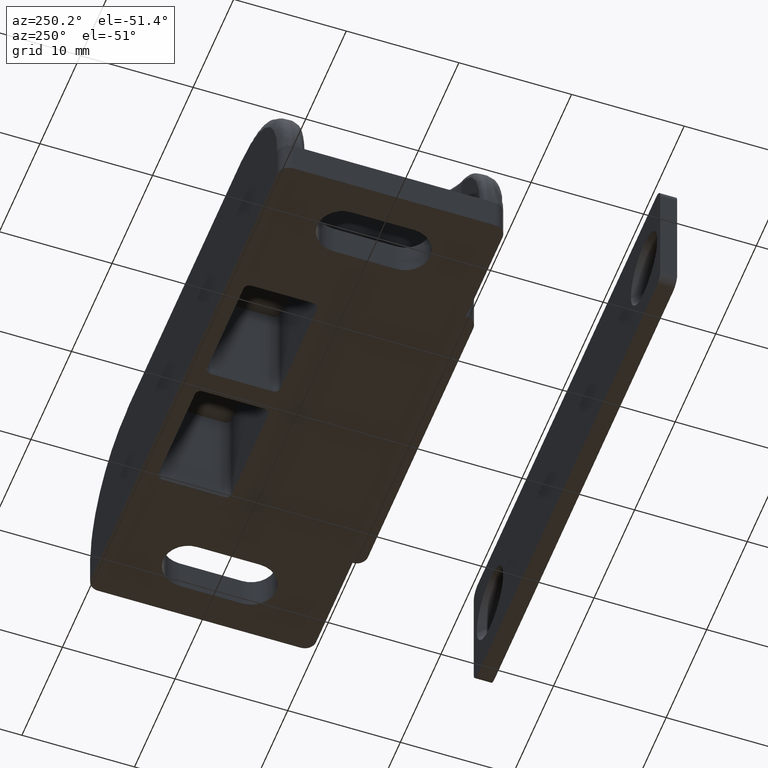
[diagram: clean part render]
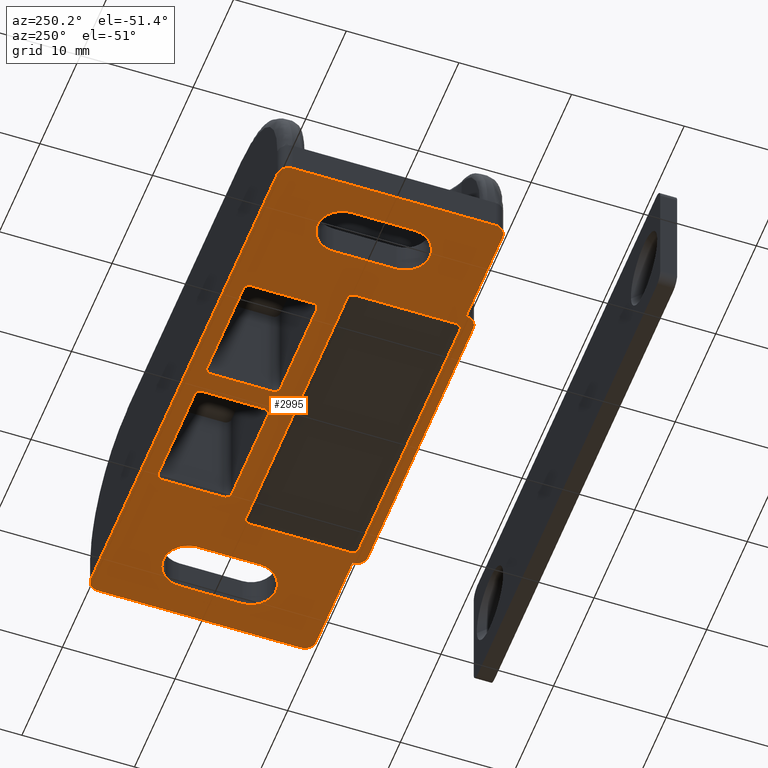
[diagram: same view with one face highlighted and labeled with its STEP entity id]
A machine part, auxiliary view. The second image highlights one B-rep face of the part: STEP entity #2995.
In plain terms, the highlighted face is a freeform B-spline surface patch.
Its self-contained STEP definition (entity closure, byte-faithful):
#847=CARTESIAN_POINT('',(-1.000000000035470,7.999999999994010,0.0));
#848=VERTEX_POINT('',#847);
#849=CARTESIAN_POINT('',(-1.000000000012264,2.499999999996120,0.0));
#850=VERTEX_POINT('',#849);
#851=CARTESIAN_POINT('',(-1.000000000035470,7.999999999994010,0.0));
#852=CARTESIAN_POINT('',(-1.000000000012264,2.499999999996120,0.0));
#853=QUASI_UNIFORM_CURVE('',1,(#851,#852),.UNSPECIFIED.,.F.,.U.);
#854=EDGE_CURVE('',#848,#850,#853,.T.);
#884=CARTESIAN_POINT('',(-1.500000000037615,8.499999999994000,0.0));
#885=VERTEX_POINT('',#884);
#886=CARTESIAN_POINT('',(-1.500000000037615,8.499999999994000,0.0));
#887=CARTESIAN_POINT('',(-1.418144576856627,8.500181285363576,0.0));
#888=CARTESIAN_POINT('',(-1.291515221262883,8.468147442227391,0.0));
#889=CARTESIAN_POINT('',(-1.154360710011185,8.368957784367474,0.0));
#890=CARTESIAN_POINT('',(-1.070689054153377,8.267012678080178,0.0));
#891=CARTESIAN_POINT('',(-1.013964101509254,8.143163684542296,0.0));
#892=CARTESIAN_POINT('',(-0.999981069626187,8.049088678338185,0.0));
#893=CARTESIAN_POINT('',(-1.000000000035470,7.999999999994010,0.0));
#894=B_SPLINE_CURVE_WITH_KNOTS('',3,(#886,#887,#888,#889,#890,#891,#892,#893),.UNSPECIFIED.,.F.,.U.,(4,1,1,1,1,4),(0.000000123591320,0.245445768556055,0.380455198754261,0.503149577302182,0.638154642856663,0.785417872192489),.UNSPECIFIED.);
#895=EDGE_CURVE('',#885,#848,#894,.T.);
#912=CARTESIAN_POINT('',(-10.500000000035460,8.499999999957970,0.0));
#913=VERTEX_POINT('',#912);
#914=CARTESIAN_POINT('',(-10.500000000035460,8.499999999957970,0.0));
#915=CARTESIAN_POINT('',(-1.500000000037615,8.499999999994000,0.0));
#916=QUASI_UNIFORM_CURVE('',1,(#914,#915),.UNSPECIFIED.,.F.,.U.);
#917=EDGE_CURVE('',#913,#885,#916,.T.);
#943=CARTESIAN_POINT('',(-11.000000000035460,7.999999999955860,0.0));
#944=VERTEX_POINT('',#943);
#945=CARTESIAN_POINT('',(-11.000000000035460,7.999999999955860,0.0));
#946=CARTESIAN_POINT('',(-11.000045861300540,8.061364911064171,0.0));
#947=CARTESIAN_POINT('',(-10.977134737730550,8.184052591473131,0.0));
#948=CARTESIAN_POINT('',(-10.881134330597250,8.339921330592127,0.0));
#949=CARTESIAN_POINT('',(-10.720736259109430,8.465052959929293,0.0));
#950=CARTESIAN_POINT('',(-10.581852234637839,8.500181869398686,0.0));
#951=CARTESIAN_POINT('',(-10.500000000035460,8.499999999957970,0.0));
#952=B_SPLINE_CURVE_WITH_KNOTS('',3,(#945,#946,#947,#948,#949,#950,#951),.UNSPECIFIED.,.F.,.U.,(4,1,1,1,4),(0.000000123591916,0.184081763443753,0.368176507065391,0.539972227227943,0.785417872192440),.UNSPECIFIED.);
#953=EDGE_CURVE('',#944,#913,#952,.T.);
#970=CARTESIAN_POINT('',(-11.000000000012280,2.499999999957965,0.0));
#971=VERTEX_POINT('',#970);
#972=CARTESIAN_POINT('',(-11.000000000012280,2.499999999957965,0.0));
#973=CARTESIAN_POINT('',(-11.000000000035460,7.999999999955860,0.0));
#974=QUASI_UNIFORM_CURVE('',1,(#972,#973),.UNSPECIFIED.,.F.,.U.);
#975=EDGE_CURVE('',#971,#944,#974,.T.);
#1001=CARTESIAN_POINT('',(-10.500000000010321,1.999999999958020,0.0));
#1002=VERTEX_POINT('',#1001);
#1003=CARTESIAN_POINT('',(-10.500000000010321,1.999999999958020,0.0));
#1004=CARTESIAN_POINT('',(-10.569553796959630,1.999925312765984,0.0));
#1005=CARTESIAN_POINT('',(-10.679931137793680,2.023411332056091,0.0));
#1006=CARTESIAN_POINT('',(-10.800105625651360,2.095501036179730,0.0));
#1007=CARTESIAN_POINT('',(-10.881316304215140,2.170944159377913,0.0));
#1008=CARTESIAN_POINT('',(-10.969206643664281,2.295595939035020,0.0));
#1009=CARTESIAN_POINT('',(-11.000157313639210,2.418150218490583,0.0));
#1010=CARTESIAN_POINT('',(-11.000000000012280,2.499999999957965,0.0));
#1011=B_SPLINE_CURVE_WITH_KNOTS('',3,(#1003,#1004,#1005,#1006,#1007,#1008,#1009,#1010),.UNSPECIFIED.,.F.,.U.,(4,1,1,1,1,4),(0.000000123591676,0.208627358040334,0.331349090115399,0.417241488718900,0.539972227227621,0.785417872192286),.UNSPECIFIED.);
#1012=EDGE_CURVE('',#1002,#971,#1011,.T.);
#1029=CARTESIAN_POINT('',(-1.500000000010330,1.999999999994005,0.0));
#1030=VERTEX_POINT('',#1029);
#1031=CARTESIAN_POINT('',(-1.500000000010330,1.999999999994005,0.0));
#1032=CARTESIAN_POINT('',(-10.500000000010321,1.999999999958020,0.0));
#1033=QUASI_UNIFORM_CURVE('',1,(#1031,#1032),.UNSPECIFIED.,.F.,.U.);
#1034=EDGE_CURVE('',#1030,#1002,#1033,.T.);
#1060=CARTESIAN_POINT('',(-1.000000000012264,2.499999999996120,0.0));
#1061=CARTESIAN_POINT('',(-1.000000000012265,1.999999999995940,0.0));
#1062=CARTESIAN_POINT('',(-1.500000000010330,1.999999999994005,0.0));
#1070=(BOUNDED_CURVE()B_SPLINE_CURVE(2,(#1060,#1061,#1062),.UNSPECIFIED.,.F.,.U.)CURVE()GEOMETRIC_REPRESENTATION_ITEM()QUASI_UNIFORM_CURVE()RATIONAL_B_SPLINE_CURVE((1.0,0.707106781187916,1.0))REPRESENTATION_ITEM(''));
#1071=EDGE_CURVE('',#850,#1030,#1070,.T.);
#1189=CARTESIAN_POINT('',(1.499999999987736,2.000000000005995,0.0));
#1190=VERTEX_POINT('',#1189);
#1191=CARTESIAN_POINT('',(0.999999999987736,2.500000000003895,0.0));
#1192=VERTEX_POINT('',#1191);
#1193=CARTESIAN_POINT('',(1.499999999987736,2.000000000005995,0.0));
#1194=CARTESIAN_POINT('',(0.999999999989836,2.000000000005996,0.0));
#1195=CARTESIAN_POINT('',(0.999999999987736,2.500000000003895,0.0));
#1203=(BOUNDED_CURVE()B_SPLINE_CURVE(2,(#1193,#1194,#1195),.UNSPECIFIED.,.F.,.U.)CURVE()GEOMETRIC_REPRESENTATION_ITEM()QUASI_UNIFORM_CURVE()RATIONAL_B_SPLINE_CURVE((1.0,0.707106781188033,1.0))REPRESENTATION_ITEM(''));
#1204=EDGE_CURVE('',#1190,#1192,#1203,.T.);
#1225=CARTESIAN_POINT('',(0.999999999964530,8.000000000006001,0.0));
#1226=VERTEX_POINT('',#1225);
#1227=CARTESIAN_POINT('',(0.999999999964530,8.000000000006001,0.0));
#1228=CARTESIAN_POINT('',(0.999999999987736,2.500000000003895,0.0));
#1229=QUASI_UNIFORM_CURVE('',1,(#1227,#1228),.UNSPECIFIED.,.F.,.U.);
#1230=EDGE_CURVE('',#1226,#1192,#1229,.T.);
#1256=CARTESIAN_POINT('',(1.499999999962498,8.500000000006001,0.0));
#1257=VERTEX_POINT('',#1256);
#1258=CARTESIAN_POINT('',(0.999999999964530,8.000000000006001,0.0));
#1259=CARTESIAN_POINT('',(0.999999999964530,8.500000000003968,0.0));
#1260=CARTESIAN_POINT('',(1.499999999962498,8.500000000006001,0.0));
#1268=(BOUNDED_CURVE()B_SPLINE_CURVE(2,(#1258,#1259,#1260),.UNSPECIFIED.,.F.,.U.)CURVE()GEOMETRIC_REPRESENTATION_ITEM()QUASI_UNIFORM_CURVE()RATIONAL_B_SPLINE_CURVE((1.0,0.707106781187984,1.0))REPRESENTATION_ITEM(''));
#1269=EDGE_CURVE('',#1226,#1257,#1268,.T.);
#1286=CARTESIAN_POINT('',(10.499999999964460,8.500000000041981,0.0));
#1287=VERTEX_POINT('',#1286);
#1288=CARTESIAN_POINT('',(10.499999999964460,8.500000000041981,0.0));
#1289=CARTESIAN_POINT('',(1.499999999962498,8.500000000006001,0.0));
#1290=QUASI_UNIFORM_CURVE('',1,(#1288,#1289),.UNSPECIFIED.,.F.,.U.);
#1291=EDGE_CURVE('',#1287,#1257,#1290,.T.);
#1317=CARTESIAN_POINT('',(10.999999999964460,8.000000000044080,0.0));
#1318=VERTEX_POINT('',#1317);
#1319=CARTESIAN_POINT('',(10.499999999964460,8.500000000041981,0.0));
#1320=CARTESIAN_POINT('',(10.999999999964460,8.500000000041981,0.0));
#1321=CARTESIAN_POINT('',(10.999999999964460,8.000000000041981,0.0));
#1329=(BOUNDED_CURVE()B_SPLINE_CURVE(2,(#1319,#1320,#1321),.UNSPECIFIED.,.F.,.U.)CURVE()GEOMETRIC_REPRESENTATION_ITEM()QUASI_UNIFORM_CURVE()RATIONAL_B_SPLINE_CURVE((1.0,0.707106781186548,1.0))REPRESENTATION_ITEM(''));
#1330=EDGE_CURVE('',#1287,#1318,#1329,.T.);
#1347=CARTESIAN_POINT('',(10.999999999987660,2.500000000041980,0.0));
#1348=VERTEX_POINT('',#1347);
#1349=CARTESIAN_POINT('',(10.999999999987660,2.500000000041980,0.0));
#1350=CARTESIAN_POINT('',(10.999999999964460,8.000000000044080,0.0));
#1351=QUASI_UNIFORM_CURVE('',1,(#1349,#1350),.UNSPECIFIED.,.F.,.U.);
#1352=EDGE_CURVE('',#1348,#1318,#1351,.T.);
#1378=CARTESIAN_POINT('',(10.499999999987660,2.000000000041980,0.0));
#1379=VERTEX_POINT('',#1378);
#1380=CARTESIAN_POINT('',(10.999999999987660,2.500000000041980,0.0));
#1381=CARTESIAN_POINT('',(10.999999999987660,2.000000000041979,0.0));
#1382=CARTESIAN_POINT('',(10.499999999987660,2.000000000041980,0.0));
#1390=(BOUNDED_CURVE()B_SPLINE_CURVE(2,(#1380,#1381,#1382),.UNSPECIFIED.,.F.,.U.)CURVE()GEOMETRIC_REPRESENTATION_ITEM()QUASI_UNIFORM_CURVE()RATIONAL_B_SPLINE_CURVE((1.0,0.707106781186548,1.0))REPRESENTATION_ITEM(''));
#1391=EDGE_CURVE('',#1348,#1379,#1390,.T.);
#1408=CARTESIAN_POINT('',(1.499999999987736,2.000000000005995,0.0));
#1409=CARTESIAN_POINT('',(10.499999999987660,2.000000000041980,0.0));
#1410=QUASI_UNIFORM_CURVE('',1,(#1408,#1409),.UNSPECIFIED.,.F.,.U.);
#1411=EDGE_CURVE('',#1190,#1379,#1410,.T.);
#1515=CARTESIAN_POINT('',(13.000000000000259,-0.499999999950096,0.0));
#1516=VERTEX_POINT('',#1515);
#1517=CARTESIAN_POINT('',(13.000000000038460,-9.499999999947901,0.0));
#1518=VERTEX_POINT('',#1517);
#1519=CARTESIAN_POINT('',(13.000000000000259,-0.499999999950096,0.0));
#1520=CARTESIAN_POINT('',(13.000000000038460,-9.499999999947901,0.0));
#1521=QUASI_UNIFORM_CURVE('',1,(#1519,#1520),.UNSPECIFIED.,.F.,.U.);
#1522=EDGE_CURVE('',#1516,#1518,#1521,.T.);
#1552=CARTESIAN_POINT('',(12.499999999998360,4.999379E-011,0.0));
#1553=VERTEX_POINT('',#1552);
#1554=CARTESIAN_POINT('',(12.499999999998360,4.999379E-011,0.0));
#1555=CARTESIAN_POINT('',(12.573656350086150,0.000102404549932,0.0));
#1556=CARTESIAN_POINT('',(12.683986070851940,-0.024854610088366,0.0));
#1557=CARTESIAN_POINT('',(12.827668926871119,-0.113384602888098,0.0));
#1558=CARTESIAN_POINT('',(12.922450740591550,-0.217955642119077,0.0));
#1559=CARTESIAN_POINT('',(12.986029418984810,-0.356838341703789,0.0));
#1560=CARTESIAN_POINT('',(13.000022405906551,-0.450910684634939,0.0));
#1561=CARTESIAN_POINT('',(13.000000000000259,-0.499999999950096,0.0));
#1562=B_SPLINE_CURVE_WITH_KNOTS('',3,(#1554,#1555,#1556,#1557,#1558,#1559,#1560,#1561),.UNSPECIFIED.,.F.,.U.,(4,1,1,1,1,4),(0.000000123593303,0.220901045042595,0.331349090116452,0.503149577302893,0.638154642856930,0.785417872192222),.UNSPECIFIED.);
#1563=EDGE_CURVE('',#1553,#1516,#1562,.T.);
#1580=CARTESIAN_POINT('',(-12.499999999999661,-5.005063E-011,0.0));
#1581=VERTEX_POINT('',#1580);
#1582=CARTESIAN_POINT('',(-12.499999999999661,-5.005063E-011,0.0));
#1583=CARTESIAN_POINT('',(12.499999999998360,4.999379E-011,0.0));
#1584=QUASI_UNIFORM_CURVE('',1,(#1582,#1583),.UNSPECIFIED.,.F.,.U.);
#1585=EDGE_CURVE('',#1581,#1553,#1584,.T.);
#1611=CARTESIAN_POINT('',(-12.999999999999639,-0.500000000052097,0.0));
#1612=VERTEX_POINT('',#1611);
#1613=CARTESIAN_POINT('',(-12.999999999999639,-0.500000000052097,0.0));
#1614=CARTESIAN_POINT('',(-13.000022797744380,-0.450910979784352,0.0));
#1615=CARTESIAN_POINT('',(-12.986027174540590,-0.356839263101449,0.0));
#1616=CARTESIAN_POINT('',(-12.922453593916771,-0.217952776566497,0.0));
#1617=CARTESIAN_POINT('',(-12.833243712626690,-0.119538024007047,0.0));
#1618=CARTESIAN_POINT('',(-12.692124491026849,-0.027724687470865,0.0));
#1619=CARTESIAN_POINT('',(-12.581861585179750,0.000182994520490,0.0));
#1620=CARTESIAN_POINT('',(-12.499999999999661,-5.005063E-011,0.0));
#1621=B_SPLINE_CURVE_WITH_KNOTS('',3,(#1613,#1614,#1615,#1616,#1617,#1618,#1619,#1620),.UNSPECIFIED.,.F.,.U.,(4,1,1,1,1,4),(0.000000123592057,0.147263352927700,0.282268418482022,0.454068905668779,0.539972227227888,0.785417872192386),.UNSPECIFIED.);
#1622=EDGE_CURVE('',#1612,#1581,#1621,.T.);
#1639=CARTESIAN_POINT('',(-12.999999999961560,-9.500000000049989,0.0));
#1640=VERTEX_POINT('',#1639);
#1641=CARTESIAN_POINT('',(-12.999999999961560,-9.500000000049989,0.0));
#1642=CARTESIAN_POINT('',(-12.999999999999639,-0.500000000052097,0.0));
#1643=QUASI_UNIFORM_CURVE('',1,(#1641,#1642),.UNSPECIFIED.,.F.,.U.);
#1644=EDGE_CURVE('',#1640,#1612,#1643,.T.);
#1670=CARTESIAN_POINT('',(-12.499999999961560,-10.000000000049940,0.0));
#1671=VERTEX_POINT('',#1670);
#1672=CARTESIAN_POINT('',(-12.499999999961560,-10.000000000049940,0.0));
#1673=CARTESIAN_POINT('',(-12.999999999961560,-10.000000000049990,0.0));
#1674=CARTESIAN_POINT('',(-12.999999999961560,-9.500000000049989,0.0));
#1682=(BOUNDED_CURVE()B_SPLINE_CURVE(2,(#1672,#1673,#1674),.UNSPECIFIED.,.F.,.U.)CURVE()GEOMETRIC_REPRESENTATION_ITEM()QUASI_UNIFORM_CURVE()RATIONAL_B_SPLINE_CURVE((1.0,0.707106781186548,1.0))REPRESENTATION_ITEM(''));
#1683=EDGE_CURVE('',#1671,#1640,#1682,.T.);
#1700=CARTESIAN_POINT('',(12.500000000038460,-9.999999999950010,0.0));
#1701=VERTEX_POINT('',#1700);
#1702=CARTESIAN_POINT('',(12.500000000038460,-9.999999999950010,0.0));
#1703=CARTESIAN_POINT('',(-12.499999999961560,-10.000000000049940,0.0));
#1704=QUASI_UNIFORM_CURVE('',1,(#1702,#1703),.UNSPECIFIED.,.F.,.U.);
#1705=EDGE_CURVE('',#1701,#1671,#1704,.T.);
#1731=CARTESIAN_POINT('',(13.000000000038460,-9.499999999947901,0.0));
#1732=CARTESIAN_POINT('',(13.000000000038462,-9.999999999950012,0.0));
#1733=CARTESIAN_POINT('',(12.500000000038460,-9.999999999950012,0.0));
#1741=(BOUNDED_CURVE()B_SPLINE_CURVE(2,(#1731,#1732,#1733),.UNSPECIFIED.,.F.,.U.)CURVE()GEOMETRIC_REPRESENTATION_ITEM()QUASI_UNIFORM_CURVE()RATIONAL_B_SPLINE_CURVE((1.0,0.707106781186548,1.0))REPRESENTATION_ITEM(''));
#1742=EDGE_CURVE('',#1518,#1701,#1741,.T.);
#1768=CARTESIAN_POINT('',(-21.200000000003548,-2.799999999999385,8.182344E-011));
#1769=VERTEX_POINT('',#1768);
#1770=CARTESIAN_POINT('',(-16.800000000003500,-2.799999999999785,0.0));
#1771=VERTEX_POINT('',#1770);
#1772=CARTESIAN_POINT('',(-21.200000000003548,-2.799999999999385,8.182344E-011));
#1773=CARTESIAN_POINT('',(-21.200014035222360,-2.943985025834917,8.182344E-011));
#1774=CARTESIAN_POINT('',(-21.169856913327770,-3.249948613311875,8.182344E-011));
#1775=CARTESIAN_POINT('',(-21.011355765905432,-3.750632422289626,8.182344E-011));
#1776=CARTESIAN_POINT('',(-20.714440519961428,-4.219443085349657,8.182344E-011));
#1777=CARTESIAN_POINT('',(-20.273799002967149,-4.623782332748077,8.182344E-011));
#1778=CARTESIAN_POINT('',(-19.791265393646679,-4.877908535921897,8.182344E-011));
#1779=CARTESIAN_POINT('',(-19.333163874934801,-4.986621950209796,8.182344E-011));
#1780=CARTESIAN_POINT('',(-18.909880711432780,-5.010025163830843,8.182344E-011));
#1781=CARTESIAN_POINT('',(-18.505514287329280,-4.960163217194029,8.182063E-011));
#1782=CARTESIAN_POINT('',(-18.018064562132121,-4.792523098164563,8.184104E-011));
#1783=CARTESIAN_POINT('',(-17.589733580962118,-4.517580433595072,8.173891E-011));
#1784=CARTESIAN_POINT('',(-17.217791473350459,-4.122053553121088,8.215452E-011));
#1785=CARTESIAN_POINT('',(-16.984943574664982,-3.722519435527489,8.176315E-011));
#1786=CARTESIAN_POINT('',(-16.834806800296182,-3.267937692633274,7.770744E-011));
#1787=CARTESIAN_POINT('',(-16.799962564355400,-2.970984335306891,1.134238E-010));
#1788=CARTESIAN_POINT('',(-16.800000000003500,-2.799999999999785,0.0));
#1789=B_SPLINE_CURVE_WITH_KNOTS('',3,(#1772,#1773,#1774,#1775,#1776,#1777,#1778,#1779,#1780,#1781,#1782,#1783,#1784,#1785,#1786,#1787,#1788),.UNSPECIFIED.,.F.,.U.,(4,1,1,1,1,1,1,1,1,1,1,1,1,1,4),(0.000000170090376,0.431957898050461,0.917921801200133,1.565896788740989,2.078866167304941,2.699842888576141,3.185806585138208,3.482744671082705,3.968734878159440,4.400699643406163,5.021667728153497,5.480642273643279,6.020625235722035,6.398599646332801,6.911547204700198),.UNSPECIFIED.);
#1790=EDGE_CURVE('',#1769,#1771,#1789,.T.);
#1835=CARTESIAN_POINT('',(-21.200000000002301,2.800000000000095,8.182344E-011));
#1836=VERTEX_POINT('',#1835);
#1837=CARTESIAN_POINT('',(-21.200000000002301,2.800000000000095,8.182344E-011));
#1838=CARTESIAN_POINT('',(-21.200000000003548,-2.799999999999385,8.182344E-011));
#1839=QUASI_UNIFORM_CURVE('',1,(#1837,#1838),.UNSPECIFIED.,.F.,.U.);
#1840=EDGE_CURVE('',#1836,#1769,#1839,.T.);
#1876=CARTESIAN_POINT('',(-16.800000000002250,2.800000000000095,8.182344E-011));
#1877=VERTEX_POINT('',#1876);
#1878=CARTESIAN_POINT('',(-16.800000000002250,2.800000000000095,8.182344E-011));
#1879=CARTESIAN_POINT('',(-16.799977033698859,2.961979648967807,8.182344E-011));
#1880=CARTESIAN_POINT('',(-16.836922810493078,3.294946562102949,8.182344E-011));
#1881=CARTESIAN_POINT('',(-16.986914171685850,3.722422900461682,8.182344E-011));
#1882=CARTESIAN_POINT('',(-17.193670295881549,4.072152599387451,8.182344E-011));
#1883=CARTESIAN_POINT('',(-17.459066329040741,4.391592210459012,8.182344E-011));
#1884=CARTESIAN_POINT('',(-17.834255502906341,4.691900503816167,8.182344E-011));
#1885=CARTESIAN_POINT('',(-18.271199024894269,4.891996702050800,8.182344E-011));
#1886=CARTESIAN_POINT('',(-18.728610092606981,4.997647206918710,8.182344E-011));
#1887=CARTESIAN_POINT('',(-19.190472550971158,5.011854016328301,8.182344E-011));
#1888=CARTESIAN_POINT('',(-19.705250166062271,4.906170605683383,8.182344E-011));
#1889=CARTESIAN_POINT('',(-20.123283569075639,4.708448899280573,8.182344E-011));
#1890=CARTESIAN_POINT('',(-20.449430878994949,4.466513398309115,8.182344E-011));
#1891=CARTESIAN_POINT('',(-20.684173357804799,4.228868880515470,8.182344E-011));
#1892=CARTESIAN_POINT('',(-20.922088043780501,3.899778934422209,8.182344E-011));
#1893=CARTESIAN_POINT('',(-21.137338097128840,3.429903730383904,8.182344E-011));
#1894=CARTESIAN_POINT('',(-21.200096558436378,3.024985794838863,8.182344E-011));
#1895=CARTESIAN_POINT('',(-21.200000000002301,2.800000000000095,8.182344E-011));
#1896=B_SPLINE_CURVE_WITH_KNOTS('',3,(#1878,#1879,#1880,#1881,#1882,#1883,#1884,#1885,#1886,#1887,#1888,#1889,#1890,#1891,#1892,#1893,#1894,#1895),.UNSPECIFIED.,.F.,.U.,(4,1,1,1,1,1,1,1,1,1,1,1,1,1,1,4),(0.000000170090687,0.485939635807597,0.998922497431208,1.349905382364107,1.700889989325206,2.240863361446135,2.780839676992331,3.131824927391030,3.644749587917279,4.157703510800427,4.697691373980877,5.021667728155252,5.372653603359586,5.696628429901692,6.236607287647940,6.911547204699534),.UNSPECIFIED.);
#1897=EDGE_CURVE('',#1877,#1836,#1896,.T.);
#1936=CARTESIAN_POINT('',(-16.800000000003500,-2.799999999999785,0.0));
#1937=CARTESIAN_POINT('',(-16.800000000002250,2.800000000000095,8.182344E-011));
#1938=QUASI_UNIFORM_CURVE('',1,(#1936,#1937),.UNSPECIFIED.,.F.,.U.);
#1939=EDGE_CURVE('',#1771,#1877,#1938,.T.);
#2499=CARTESIAN_POINT('',(-13.000000000000661,-10.999999999999799,0.0));
#2500=VERTEX_POINT('',#2499);
#2501=CARTESIAN_POINT('',(-14.000000000000661,-9.999999999999789,0.0));
#2502=VERTEX_POINT('',#2501);
#2503=CARTESIAN_POINT('',(-13.000000000000661,-10.999999999999790,0.0));
#2504=CARTESIAN_POINT('',(-14.000000000000657,-10.999999999999787,0.0));
#2505=CARTESIAN_POINT('',(-14.000000000000661,-9.999999999999789,0.0));
#2513=(BOUNDED_CURVE()B_SPLINE_CURVE(2,(#2503,#2504,#2505),.UNSPECIFIED.,.F.,.U.)CURVE()GEOMETRIC_REPRESENTATION_ITEM()QUASI_UNIFORM_CURVE()RATIONAL_B_SPLINE_CURVE((1.0,0.707106781186548,1.0))REPRESENTATION_ITEM(''));
#2514=EDGE_CURVE('',#2500,#2502,#2513,.T.);
#2560=CARTESIAN_POINT('',(13.999999999996760,-9.999999999999789,0.0));
#2561=VERTEX_POINT('',#2560);
#2562=CARTESIAN_POINT('',(12.999999999996760,-10.999999999999799,0.0));
#2563=VERTEX_POINT('',#2562);
#2564=CARTESIAN_POINT('',(13.999999999996760,-9.999999999999789,0.0));
#2565=CARTESIAN_POINT('',(13.999999999996763,-10.999999999999787,0.0));
#2566=CARTESIAN_POINT('',(12.999999999996760,-10.999999999999790,0.0));
#2574=(BOUNDED_CURVE()B_SPLINE_CURVE(2,(#2564,#2565,#2566),.UNSPECIFIED.,.F.,.U.)CURVE()GEOMETRIC_REPRESENTATION_ITEM()QUASI_UNIFORM_CURVE()RATIONAL_B_SPLINE_CURVE((1.0,0.707106781186548,1.0))REPRESENTATION_ITEM(''));
#2575=EDGE_CURVE('',#2561,#2563,#2574,.T.);
#2618=CARTESIAN_POINT('',(12.999999999996760,-10.999999999999799,0.0));
#2619=CARTESIAN_POINT('',(-13.000000000000661,-10.999999999999799,0.0));
#2620=QUASI_UNIFORM_CURVE('',1,(#2618,#2619),.UNSPECIFIED.,.F.,.U.);
#2621=EDGE_CURVE('',#2563,#2500,#2620,.T.);
#2649=CARTESIAN_POINT('',(22.999999999996749,10.0,0.0));
#2650=VERTEX_POINT('',#2649);
#2656=CARTESIAN_POINT('',(-23.000000000003151,10.0,0.0));
#2657=VERTEX_POINT('',#2656);
#2658=CARTESIAN_POINT('',(22.999999999996749,10.0,0.0));
#2659=CARTESIAN_POINT('',(-23.000000000003151,10.0,0.0));
#2660=QUASI_UNIFORM_CURVE('',1,(#2658,#2659),.UNSPECIFIED.,.F.,.U.);
#2661=EDGE_CURVE('',#2650,#2657,#2660,.T.);
#2713=CARTESIAN_POINT('',(-23.000000000003151,-9.999999999999799,0.0));
#2714=VERTEX_POINT('',#2713);
#2720=CARTESIAN_POINT('',(-14.000000000000661,-9.999999999999789,0.0));
#2721=CARTESIAN_POINT('',(-23.000000000003151,-9.999999999999799,0.0));
#2722=QUASI_UNIFORM_CURVE('',1,(#2720,#2721),.UNSPECIFIED.,.F.,.U.);
#2723=EDGE_CURVE('',#2502,#2714,#2722,.T.);
#2734=CARTESIAN_POINT('',(22.999999999996749,-9.999999999999799,0.0));
#2735=VERTEX_POINT('',#2734);
#2736=CARTESIAN_POINT('',(22.999999999996749,-9.999999999999799,0.0));
#2737=CARTESIAN_POINT('',(13.999999999996760,-9.999999999999789,0.0));
#2738=QUASI_UNIFORM_CURVE('',1,(#2736,#2737),.UNSPECIFIED.,.F.,.U.);
#2739=EDGE_CURVE('',#2735,#2561,#2738,.T.);
#2814=CARTESIAN_POINT('',(-26.397599906958231,-12.048949959297721,0.0));
#2815=CARTESIAN_POINT('',(26.397601194412111,-12.048949959297721,0.0));
#2816=CARTESIAN_POINT('',(-26.397599906958231,11.048950522561810,0.0));
#2817=CARTESIAN_POINT('',(26.397601194412111,11.048950522561810,0.0));
#2818=B_SPLINE_SURFACE_WITH_KNOTS('',1,1,((#2814,#2816),(#2815,#2817)),.UNSPECIFIED.,.F.,.F.,.U.,(2,2),(2,2),(0.0,52.795201101370338),(0.0,23.097900481859529),.UNSPECIFIED.);
#2819=ORIENTED_EDGE('',*,*,#2723,.T.);
#2820=CARTESIAN_POINT('',(-23.999999999992600,-8.999999999999789,0.0));
#2821=VERTEX_POINT('',#2820);
#2822=CARTESIAN_POINT('',(-23.000000000003151,-9.999999999999790,0.0));
#2823=CARTESIAN_POINT('',(-24.000000000003151,-9.999999999999790,0.0));
#2824=CARTESIAN_POINT('',(-24.000000000003151,-8.999999999999789,0.0));
#2832=(BOUNDED_CURVE()B_SPLINE_CURVE(2,(#2822,#2823,#2824),.UNSPECIFIED.,.F.,.U.)CURVE()GEOMETRIC_REPRESENTATION_ITEM()QUASI_UNIFORM_CURVE()RATIONAL_B_SPLINE_CURVE((1.0,0.707106781186548,1.0))REPRESENTATION_ITEM(''));
#2833=EDGE_CURVE('',#2714,#2821,#2832,.T.);
#2834=ORIENTED_EDGE('',*,*,#2833,.T.);
#2835=CARTESIAN_POINT('',(-23.999999999992600,9.0,0.0));
#2836=VERTEX_POINT('',#2835);
#2837=CARTESIAN_POINT('',(-23.999999999992600,9.0,0.0));
#2838=CARTESIAN_POINT('',(-23.999999999992600,-8.999999999999789,0.0));
#2839=QUASI_UNIFORM_CURVE('',1,(#2837,#2838),.UNSPECIFIED.,.F.,.U.);
#2840=EDGE_CURVE('',#2836,#2821,#2839,.T.);
#2841=ORIENTED_EDGE('',*,*,#2840,.F.);
#2842=CARTESIAN_POINT('',(-23.999999999992600,9.0,0.0));
#2843=CARTESIAN_POINT('',(-24.000000000003151,9.999999999999998,0.0));
#2844=CARTESIAN_POINT('',(-23.000000000003151,9.999999999999998,0.0));
#2852=(BOUNDED_CURVE()B_SPLINE_CURVE(2,(#2842,#2843,#2844),.UNSPECIFIED.,.F.,.U.)CURVE()GEOMETRIC_REPRESENTATION_ITEM()QUASI_UNIFORM_CURVE()RATIONAL_B_SPLINE_CURVE((1.0,0.707106781186548,1.0))REPRESENTATION_ITEM(''));
#2853=EDGE_CURVE('',#2836,#2657,#2852,.T.);
#2854=ORIENTED_EDGE('',*,*,#2853,.T.);
#2855=ORIENTED_EDGE('',*,*,#2661,.F.);
#2856=CARTESIAN_POINT('',(23.999999999986152,9.0,0.0));
#2857=VERTEX_POINT('',#2856);
#2858=CARTESIAN_POINT('',(22.999999999996749,9.999999999999998,0.0));
#2859=CARTESIAN_POINT('',(23.999999999996746,9.999999999999998,0.0));
#2860=CARTESIAN_POINT('',(23.999999999996749,9.0,0.0));
#2868=(BOUNDED_CURVE()B_SPLINE_CURVE(2,(#2858,#2859,#2860),.UNSPECIFIED.,.F.,.U.)CURVE()GEOMETRIC_REPRESENTATION_ITEM()QUASI_UNIFORM_CURVE()RATIONAL_B_SPLINE_CURVE((1.0,0.707106781186548,1.0))REPRESENTATION_ITEM(''));
#2869=EDGE_CURVE('',#2650,#2857,#2868,.T.);
#2870=ORIENTED_EDGE('',*,*,#2869,.T.);
#2871=CARTESIAN_POINT('',(23.999999999986152,-8.999999999999789,0.0));
#2872=VERTEX_POINT('',#2871);
#2873=CARTESIAN_POINT('',(23.999999999986152,9.0,0.0));
#2874=CARTESIAN_POINT('',(23.999999999986152,-8.999999999999789,0.0));
#2875=QUASI_UNIFORM_CURVE('',1,(#2873,#2874),.UNSPECIFIED.,.F.,.U.);
#2876=EDGE_CURVE('',#2857,#2872,#2875,.T.);
#2877=ORIENTED_EDGE('',*,*,#2876,.T.);
#2878=CARTESIAN_POINT('',(23.999999999986152,-8.999999999999789,0.0));
#2879=CARTESIAN_POINT('',(23.999999999996746,-9.999999999999790,0.0));
#2880=CARTESIAN_POINT('',(22.999999999996749,-9.999999999999790,0.0));
#2888=(BOUNDED_CURVE()B_SPLINE_CURVE(2,(#2878,#2879,#2880),.UNSPECIFIED.,.F.,.U.)CURVE()GEOMETRIC_REPRESENTATION_ITEM()QUASI_UNIFORM_CURVE()RATIONAL_B_SPLINE_CURVE((1.0,0.707106781186548,1.0))REPRESENTATION_ITEM(''));
#2889=EDGE_CURVE('',#2872,#2735,#2888,.T.);
#2890=ORIENTED_EDGE('',*,*,#2889,.T.);
#2891=ORIENTED_EDGE('',*,*,#2739,.T.);
#2892=ORIENTED_EDGE('',*,*,#2575,.T.);
#2893=ORIENTED_EDGE('',*,*,#2621,.T.);
#2894=ORIENTED_EDGE('',*,*,#2514,.T.);
#2895=EDGE_LOOP('',(#2819,#2834,#2841,#2854,#2855,#2870,#2877,#2890,#2891,#2892,#2893,#2894));
#2896=FACE_OUTER_BOUND('',#2895,.T.);
#2897=ORIENTED_EDGE('',*,*,#1939,.T.);
#2898=ORIENTED_EDGE('',*,*,#1897,.T.);
#2899=ORIENTED_EDGE('',*,*,#1840,.T.);
#2900=ORIENTED_EDGE('',*,*,#1790,.T.);
#2901=EDGE_LOOP('',(#2897,#2898,#2899,#2900));
#2902=FACE_BOUND('',#2901,.T.);
#2903=ORIENTED_EDGE('',*,*,#1034,.F.);
#2904=ORIENTED_EDGE('',*,*,#1071,.F.);
#2905=ORIENTED_EDGE('',*,*,#854,.F.);
#2906=ORIENTED_EDGE('',*,*,#895,.F.);
#2907=ORIENTED_EDGE('',*,*,#917,.F.);
#2908=ORIENTED_EDGE('',*,*,#953,.F.);
#2909=ORIENTED_EDGE('',*,*,#975,.F.);
#2910=ORIENTED_EDGE('',*,*,#1012,.F.);
#2911=EDGE_LOOP('',(#2903,#2904,#2905,#2906,#2907,#2908,#2909,#2910));
#2912=FACE_BOUND('',#2911,.T.);
#2913=CARTESIAN_POINT('',(21.199999999999399,2.800000000000095,8.182344E-011));
#2914=VERTEX_POINT('',#2913);
#2915=CARTESIAN_POINT('',(16.799999999999351,2.800000000000095,8.182344E-011));
#2916=VERTEX_POINT('',#2915);
#2917=CARTESIAN_POINT('',(21.199999999999399,2.800000000000095,8.182344E-011));
#2918=CARTESIAN_POINT('',(21.200214334042219,3.061010697765132,8.182344E-011));
#2919=CARTESIAN_POINT('',(21.127054741124930,3.465819995336332,8.182344E-011));
#2920=CARTESIAN_POINT('',(20.896946182652279,3.937144079676368,8.182344E-011));
#2921=CARTESIAN_POINT('',(20.635626992581422,4.294104252607568,8.182344E-011));
#2922=CARTESIAN_POINT('',(20.346744921817869,4.555938679194599,8.182344E-011));
#2923=CARTESIAN_POINT('',(20.001286885039161,4.768756950397143,8.182344E-011));
#2924=CARTESIAN_POINT('',(19.618205092286932,4.930252313965520,8.182344E-011));
#2925=CARTESIAN_POINT('',(19.144866688380660,5.015386440296510,8.182344E-011));
#2926=CARTESIAN_POINT('',(18.684113250315129,4.989860744431568,8.182344E-011));
#2927=CARTESIAN_POINT('',(18.289432820328070,4.893570462080201,8.182344E-011));
#2928=CARTESIAN_POINT('',(17.949769825909460,4.745493431606040,8.182344E-011));
#2929=CARTESIAN_POINT('',(17.580409880203739,4.502010233944010,8.182344E-011));
#2930=CARTESIAN_POINT('',(17.261559870211890,4.179231157752121,8.182344E-011));
#2931=CARTESIAN_POINT('',(17.029158448155730,3.801958240251123,8.182344E-011));
#2932=CARTESIAN_POINT('',(16.851532056849639,3.357894210667918,8.182344E-011));
#2933=CARTESIAN_POINT('',(16.799895280132830,3.024994654094462,8.182344E-011));
#2934=CARTESIAN_POINT('',(16.799999999999351,2.800000000000095,8.182344E-011));
#2935=B_SPLINE_CURVE_WITH_KNOTS('',3,(#2917,#2918,#2919,#2920,#2921,#2922,#2923,#2924,#2925,#2926,#2927,#2928,#2929,#2930,#2931,#2932,#2933,#2934),.UNSPECIFIED.,.F.,.U.,(4,1,1,1,1,1,1,1,1,1,1,1,1,1,1,4),(0.000000170091456,0.782931744164558,1.214913599890876,1.565896788742591,2.105872431816775,2.375848701780921,2.780839676991807,3.347793469673723,3.806747419317365,4.157703510797957,4.562697442459531,4.913677451441030,5.480642273643086,5.912617379912310,6.236607287647545,6.911547204699877),.UNSPECIFIED.);
#2936=EDGE_CURVE('',#2914,#2916,#2935,.T.);
#2937=ORIENTED_EDGE('',*,*,#2936,.T.);
#2938=CARTESIAN_POINT('',(16.800000000000651,-2.799999999999785,8.182344E-011));
#2939=VERTEX_POINT('',#2938);
#2940=CARTESIAN_POINT('',(16.800000000000651,-2.799999999999785,8.182344E-011));
#2941=CARTESIAN_POINT('',(16.799999999999351,2.800000000000095,8.182344E-011));
#2942=QUASI_UNIFORM_CURVE('',1,(#2940,#2941),.UNSPECIFIED.,.F.,.U.);
#2943=EDGE_CURVE('',#2939,#2916,#2942,.T.);
#2944=ORIENTED_EDGE('',*,*,#2943,.F.);
#2945=CARTESIAN_POINT('',(21.200000000000649,-2.799999999999785,0.0));
#2946=VERTEX_POINT('',#2945);
#2947=CARTESIAN_POINT('',(16.800000000000651,-2.799999999999785,8.182344E-011));
#2948=CARTESIAN_POINT('',(16.799983549574701,-2.943985640677806,8.182344E-011));
#2949=CARTESIAN_POINT('',(16.830139565546830,-3.249952334509286,8.182344E-011));
#2950=CARTESIAN_POINT('',(16.980477576710818,-3.724711976373532,8.182344E-011));
#2951=CARTESIAN_POINT('',(17.220848510570821,-4.120183487081280,8.182344E-011));
#2952=CARTESIAN_POINT('',(17.534099147886870,-4.457354840353572,8.182344E-011));
#2953=CARTESIAN_POINT('',(17.875898032035622,-4.710869438128215,8.182344E-011));
#2954=CARTESIAN_POINT('',(18.354373790486761,-4.926525779374610,8.182343E-011));
#2955=CARTESIAN_POINT('',(18.855319098475739,-5.016634650978759,8.182345E-011));
#2956=CARTESIAN_POINT('',(19.288560914604378,-4.989926892600124,8.182341E-011));
#2957=CARTESIAN_POINT('',(19.640788351410990,-4.913102358988586,8.181516E-011));
#2958=CARTESIAN_POINT('',(20.021146406588141,-4.769123185146800,8.186883E-011));
#2959=CARTESIAN_POINT('',(20.422661311677452,-4.504383581220561,8.170251E-011));
#2960=CARTESIAN_POINT('',(20.726387945915359,-4.181365228944282,8.208170E-011));
#2961=CARTESIAN_POINT('',(20.934909881126970,-3.865076900723748,8.444296E-011));
#2962=CARTESIAN_POINT('',(21.134315941381882,-3.429845727808958,7.130795E-011));
#2963=CARTESIAN_POINT('',(21.200197728084738,-3.052008981792346,1.089218E-010));
#2964=CARTESIAN_POINT('',(21.200000000000649,-2.799999999999785,0.0));
#2965=B_SPLINE_CURVE_WITH_KNOTS('',3,(#2947,#2948,#2949,#2950,#2951,#2952,#2953,#2954,#2955,#2956,#2957,#2958,#2959,#2960,#2961,#2962,#2963,#2964),.UNSPECIFIED.,.F.,.U.,(4,1,1,1,1,1,1,1,1,1,1,1,1,1,1,4),(0.000000170099890,0.431957898059166,0.917921801208036,1.484898790589742,1.808884710325893,2.294854704807596,2.753824272962921,3.374798041650319,3.806747419319828,4.049726024434376,4.454690525649512,5.021667728155006,5.480642273644392,5.777628605619289,6.155609501304976,6.911547204699536),.UNSPECIFIED.);
#2966=EDGE_CURVE('',#2939,#2946,#2965,.T.);
#2967=ORIENTED_EDGE('',*,*,#2966,.T.);
#2968=CARTESIAN_POINT('',(21.199999999999399,2.800000000000095,8.182344E-011));
#2969=CARTESIAN_POINT('',(21.200000000000649,-2.799999999999785,0.0));
#2970=QUASI_UNIFORM_CURVE('',1,(#2968,#2969),.UNSPECIFIED.,.F.,.U.);
#2971=EDGE_CURVE('',#2914,#2946,#2970,.T.);
#2972=ORIENTED_EDGE('',*,*,#2971,.F.);
#2973=EDGE_LOOP('',(#2937,#2944,#2967,#2972));
#2974=FACE_BOUND('',#2973,.T.);
#2975=ORIENTED_EDGE('',*,*,#1705,.F.);
#2976=ORIENTED_EDGE('',*,*,#1742,.F.);
#2977=ORIENTED_EDGE('',*,*,#1522,.F.);
#2978=ORIENTED_EDGE('',*,*,#1563,.F.);
#2979=ORIENTED_EDGE('',*,*,#1585,.F.);
#2980=ORIENTED_EDGE('',*,*,#1622,.F.);
#2981=ORIENTED_EDGE('',*,*,#1644,.F.);
#2982=ORIENTED_EDGE('',*,*,#1683,.F.);
#2983=EDGE_LOOP('',(#2975,#2976,#2977,#2978,#2979,#2980,#2981,#2982));
#2984=FACE_BOUND('',#2983,.T.);
#2985=ORIENTED_EDGE('',*,*,#1411,.T.);
#2986=ORIENTED_EDGE('',*,*,#1391,.F.);
#2987=ORIENTED_EDGE('',*,*,#1352,.T.);
#2988=ORIENTED_EDGE('',*,*,#1330,.F.);
#2989=ORIENTED_EDGE('',*,*,#1291,.T.);
#2990=ORIENTED_EDGE('',*,*,#1269,.F.);
#2991=ORIENTED_EDGE('',*,*,#1230,.T.);
#2992=ORIENTED_EDGE('',*,*,#1204,.F.);
#2993=EDGE_LOOP('',(#2985,#2986,#2987,#2988,#2989,#2990,#2991,#2992));
#2994=FACE_BOUND('',#2993,.T.);
#2995=ADVANCED_FACE('',(#2896,#2902,#2912,#2974,#2984,#2994),#2818,.F.);